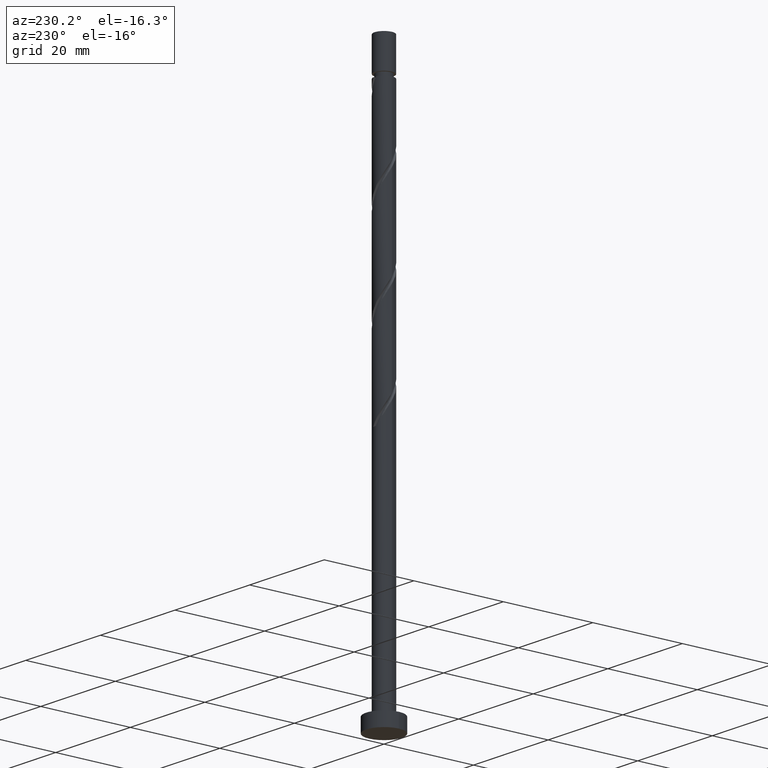
[diagram: clean part render]
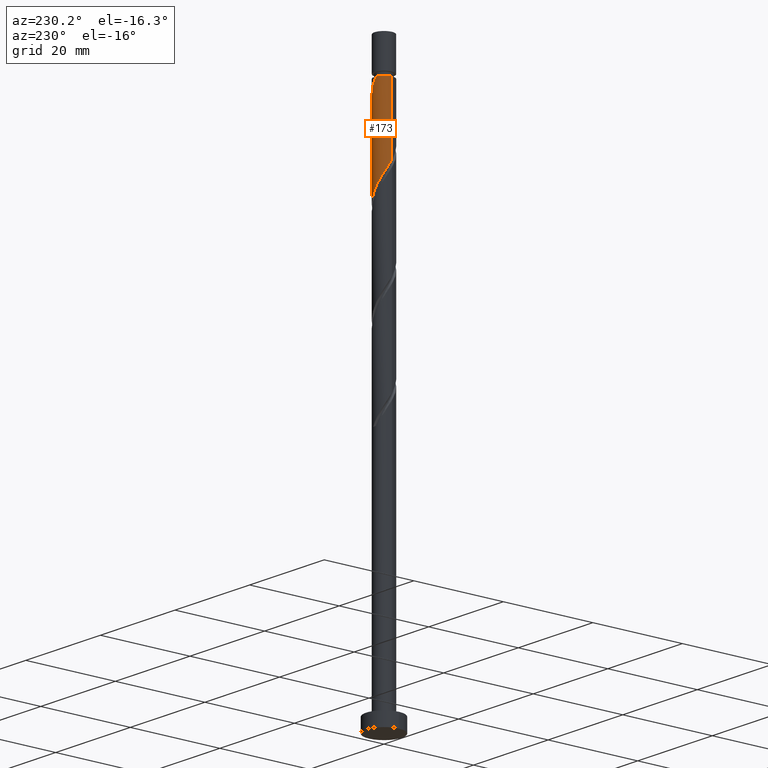
[diagram: same view with one face highlighted and labeled with its STEP entity id]
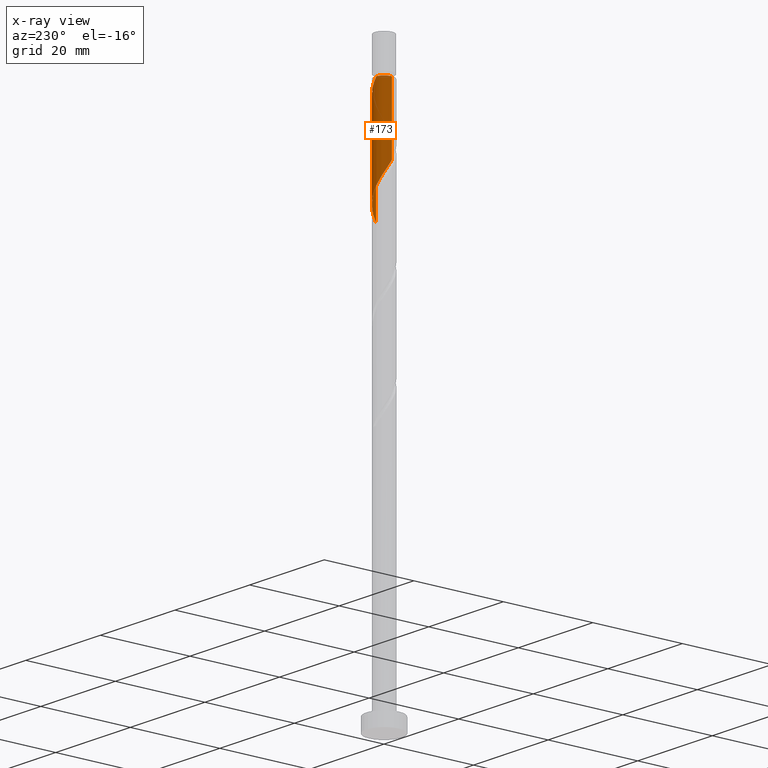
[diagram: x-ray of the same camera — body ghosted, the highlighted face saturated]
A machine part, auxiliary view. The second image highlights one B-rep face of the part: STEP entity #173.
The next image is the same camera in x-ray: the body ghosted, the highlighted face saturated — about 0% of this face is hidden behind the body in this view.
In plain terms, the highlighted cylindrical surface (edge-blend (fillet) strip) has radius 2.1 mm, axis along (-0, -0, -1).
Its self-contained STEP definition (entity closure, byte-faithful):
#11 = CARTESIAN_POINT ( 'NONE',  ( 1.419324618889671097, 1.547745982457619851, 113.9224605060030910 ) ) ;
#21 = CARTESIAN_POINT ( 'NONE',  ( 2.100000000000000089, 0.1196448486375162185, 91.86010737001400628 ) ) ;
#45 = CARTESIAN_POINT ( 'NONE',  ( -2.100000000000000533, 1.424344764404550550E-15, 102.0872629474733628 ) ) ;
#60 = CARTESIAN_POINT ( 'NONE',  ( -1.174185737693569154, 1.772544917859294911, 98.81829383933644806 ) ) ;
#67 = VERTEX_POINT ( 'NONE', #712 ) ;
#69 = FACE_OUTER_BOUND ( 'NONE', #927, .T. ) ;
#131 = CARTESIAN_POINT ( 'NONE',  ( 2.048633742055936846, 0.5689704942628333040, 92.56829383933644806 ) ) ;
#146 = VECTOR ( 'NONE', #1354, 1000.000000000000000 ) ;
#150 = CARTESIAN_POINT ( 'NONE',  ( 1.772544917859294911, 1.174185737693568710, 93.60996050600309104 ) ) ;
#171 = CARTESIAN_POINT ( 'NONE',  ( 1.322947047055943459, 1.664463500085768155, 94.65162717266979087 ) ) ;
#173 = ADVANCED_FACE ( 'NONE', ( #69 ), #898, .T. ) ;
#176 = DIRECTION ( 'NONE',  ( -0.000000000000000000, -0.000000000000000000, -1.000000000000000000 ) ) ;
#180 = CARTESIAN_POINT ( 'NONE',  ( -1.828137739088108171, 1.033398474414309876, 100.3807938393364196 ) ) ;
#198 = VERTEX_POINT ( 'NONE', #1195 ) ;
#205 = DIRECTION ( 'NONE',  ( -0.000000000000000000, -0.000000000000000000, -1.000000000000000000 ) ) ;
#234 = LINE ( 'NONE', #1540, #1139 ) ;
#236 = ORIENTED_EDGE ( 'NONE', *, *, #559, .F. ) ;
#269 = CARTESIAN_POINT ( 'NONE',  ( -0.4178947235847919051, 2.058000000000001162, 117.0474605060031053 ) ) ;
#274 = CARTESIAN_POINT ( 'NONE',  ( 2.100000000000003197, 6.746896252442569669E-16, 111.1743247311995191 ) ) ;
#279 = ORIENTED_EDGE ( 'NONE', *, *, #1047, .T. ) ;
#281 = CARTESIAN_POINT ( 'NONE',  ( -2.100000000000000089, 0.000000000000000000, 125.0000000000000000 ) ) ;
#282 = CARTESIAN_POINT ( 'NONE',  ( 2.100000000000002753, 0.2110579412044383818, 111.5086293066073750 ) ) ;
#312 = CARTESIAN_POINT ( 'NONE',  ( 0.09193954539688486971, 2.124188021909553026, 96.73496050600313367 ) ) ;
#344 = EDGE_CURVE ( 'NONE', #564, #824, #930, .T. ) ;
#362 = CARTESIAN_POINT ( 'NONE',  ( 1.910589329957616211, 0.8715781159782010068, 93.08912717266977666 ) ) ;
#400 = CARTESIAN_POINT ( 'NONE',  ( 0.8715781159782032272, 1.910589329957617766, 114.9641271726697482 ) ) ;
#424 = CIRCLE ( 'NONE', #1017, 2.099999999999998757 ) ;
#431 = CARTESIAN_POINT ( 'NONE',  ( -0.5689704942628336370, 2.048633742055936846, 97.77662717266979087 ) ) ;
#480 = VERTEX_POINT ( 'NONE', #1302 ) ;
#508 = CARTESIAN_POINT ( 'NONE',  ( 2.100000000000003197, 6.746896252442569669E-16, 111.1743247311995191 ) ) ;
#521 = CARTESIAN_POINT ( 'NONE',  ( 0.4178947235847810804, 2.058000000000001162, 96.21412717266976244 ) ) ;
#559 = EDGE_CURVE ( 'NONE', #198, #480, #1096, .T. ) ;
#564 = VERTEX_POINT ( 'NONE', #508 ) ;
#604 = CARTESIAN_POINT ( 'NONE',  ( 1.991811978090451074, 0.7438499017726767359, 112.3599605060031053 ) ) ;
#647 = CARTESIAN_POINT ( 'NONE',  ( -1.664463500085768377, 1.322947047055943015, 99.85996050600309104 ) ) ;
#712 = CARTESIAN_POINT ( 'NONE',  ( -2.099999999999998757, 0.000000000000000000, 117.0474605060031053 ) ) ;
#746 = CARTESIAN_POINT ( 'NONE',  ( 0.5689704942628347473, 2.048633742055939955, 115.4849605060031195 ) ) ;
#751 = EDGE_CURVE ( 'NONE', #67, #198, #1492, .T. ) ;
#764 = DIRECTION ( 'NONE',  ( -1.000000000000000000, 0.000000000000000000, 0.000000000000000000 ) ) ;
#824 = VERTEX_POINT ( 'NONE', #1128 ) ;
#885 = CARTESIAN_POINT ( 'NONE',  ( -2.100000000000000089, 0.2110579412044397973, 101.7529583720655637 ) ) ;
#898 = CYLINDRICAL_SURFACE ( 'NONE', #1269, 2.100000000000000089 ) ;
#927 = EDGE_LOOP ( 'NONE', ( #1549, #1413, #236, #1055, #279 ) ) ;
#930 =( BOUNDED_CURVE ( )  B_SPLINE_CURVE ( 2, ( #274, #282, #1205, #604, #1085, #1110, #11, #1453, #400, #746, #1464, #1334, #269 ),
 .UNSPECIFIED., .F., .T. ) 
 B_SPLINE_CURVE_WITH_KNOTS ( ( 3, 2, 2, 2, 2, 2, 3 ),
 ( 0.6795322023138553602, 0.6875000000000000000, 0.6999999999999999556, 0.7125000000000000222, 0.7249999999999998668, 0.7374999999999999334, 0.7499999999999998890 ),
 .UNSPECIFIED. ) 
 CURVE ( )  GEOMETRIC_REPRESENTATION_ITEM ( )  RATIONAL_B_SPLINE_CURVE ( ( 0.9039174447099405096, 0.9019565955404700297, 0.9090909090909183865, 0.8978984914501343395, 0.9090909090909183865, 0.8978984914501343395, 0.9090909090909183865, 0.8978984914501343395, 0.9090909090909183865, 0.8978984914501343395, 0.9090909090909183865, 0.8978984914501344505, 0.9090909090909182755 ) ) 
 REPRESENTATION_ITEM ( '' )  );
#953 = DIRECTION ( 'NONE',  ( -1.000000000000000000, 0.000000000000000000, 0.000000000000000000 ) ) ;
#997 = CARTESIAN_POINT ( 'NONE',  ( -2.058000000000001162, 0.4178947235847807473, 101.4224605060031195 ) ) ;
#1017 = AXIS2_PLACEMENT_3D ( 'NONE', #1201, #176, #764 ) ;
#1047 = EDGE_CURVE ( 'NONE', #67, #824, #424, .T. ) ;
#1055 = ORIENTED_EDGE ( 'NONE', *, *, #751, .F. ) ;
#1085 = CARTESIAN_POINT ( 'NONE',  ( 1.828137739088110392, 1.033398474414310098, 112.8807938393364196 ) ) ;
#1096 =( BOUNDED_CURVE ( )  B_SPLINE_CURVE ( 2, ( #45, #885, #997, #1520, #180, #647, #1130, #60, #1134, #431, #1109, #312, #521, #1494, #1243, #171, #1098, #150, #362, #131, #1455, #21, #1571 ),
 .UNSPECIFIED., .F., .T. ) 
 B_SPLINE_CURVE_WITH_KNOTS ( ( 3, 2, 2, 2, 2, 2, 2, 2, 2, 2, 2, 3 ),
 ( 0.4295322023138553602, 0.4375000000000000000, 0.4500000000000000111, 0.4625000000000000222, 0.4749999999999999778, 0.4874999999999999889, 0.5000000000000000000, 0.5124999999999999556, 0.5250000000000000222, 0.5374999999999999778, 0.5500000000000000444, 0.5545322023138549161 ),
 .UNSPECIFIED. ) 
 CURVE ( )  GEOMETRIC_REPRESENTATION_ITEM ( )  RATIONAL_B_SPLINE_CURVE ( ( 0.9039174447099354026, 0.9019565955404649227, 0.9090909090909131685, 0.8978984914501292325, 0.9090909090909131685, 0.8978984914501292325, 0.9090909090909131685, 0.8978984914501292325, 0.9090909090909131685, 0.8978984914501292325, 0.9090909090909131685, 0.8978984914501292325, 0.9090909090909131685, 0.8978984914501292325, 0.9090909090909131685, 0.8978984914501292325, 0.9090909090909131685, 0.8978984914501292325, 0.9090909090909131685, 0.8978984914501292325, 0.9090909090909131685, 0.9050328050005778113, 0.9039174447099355136 ) ) 
 REPRESENTATION_ITEM ( '' )  );
#1098 = CARTESIAN_POINT ( 'NONE',  ( 1.547745982457618963, 1.419324618889668210, 94.13079383933643385 ) ) ;
#1109 = CARTESIAN_POINT ( 'NONE',  ( -0.2385154744329744114, 2.086410881982745380, 97.25579383933643385 ) ) ;
#1110 = CARTESIAN_POINT ( 'NONE',  ( 1.664463500085770820, 1.322947047055943903, 113.4016271726697767 ) ) ;
#1128 = CARTESIAN_POINT ( 'NONE',  ( -0.4178947235847919051, 2.058000000000001162, 117.0474605060031053 ) ) ;
#1130 = CARTESIAN_POINT ( 'NONE',  ( -1.419324618889668654, 1.547745982457618963, 99.33912717266973402 ) ) ;
#1134 = CARTESIAN_POINT ( 'NONE',  ( -0.8715781159782016729, 1.910589329957616211, 98.29746050600310525 ) ) ;
#1139 = VECTOR ( 'NONE', #205, 1000.000000000000000 ) ;
#1155 = CARTESIAN_POINT ( 'NONE',  ( 0.000000000000000000, 0.000000000000000000, 125.0000000000000000 ) ) ;
#1195 = CARTESIAN_POINT ( 'NONE',  ( -2.100000000000000533, 1.424344764404550550E-15, 102.0872629474733628 ) ) ;
#1201 = CARTESIAN_POINT ( 'NONE',  ( 0.000000000000000000, 0.000000000000000000, 117.0474605060031053 ) ) ;
#1205 = CARTESIAN_POINT ( 'NONE',  ( 2.058000000000002938, 0.4178947235847805253, 111.8391271726697624 ) ) ;
#1243 = CARTESIAN_POINT ( 'NONE',  ( 1.033398474414310098, 1.828137739088108171, 95.17246050600314788 ) ) ;
#1269 = AXIS2_PLACEMENT_3D ( 'NONE', #1155, #1389, #953 ) ;
#1302 = CARTESIAN_POINT ( 'NONE',  ( 2.100000000000000533, 3.088579173340394367E-15, 91.67059628080670564 ) ) ;
#1334 = CARTESIAN_POINT ( 'NONE',  ( -0.09193954539688117822, 2.124188021909555690, 116.5266271726697340 ) ) ;
#1354 = DIRECTION ( 'NONE',  ( -0.000000000000000000, -0.000000000000000000, -1.000000000000000000 ) ) ;
#1389 = DIRECTION ( 'NONE',  ( -0.000000000000000000, -0.000000000000000000, -1.000000000000000000 ) ) ;
#1413 = ORIENTED_EDGE ( 'NONE', *, *, #1428, .T. ) ;
#1428 = EDGE_CURVE ( 'NONE', #564, #480, #234, .T. ) ;
#1453 = CARTESIAN_POINT ( 'NONE',  ( 1.174185737693571596, 1.772544917859296243, 114.4432938393364338 ) ) ;
#1455 = CARTESIAN_POINT ( 'NONE',  ( 2.086410881982745380, 0.2385154744329739673, 92.04746050600309104 ) ) ;
#1464 = CARTESIAN_POINT ( 'NONE',  ( 0.2385154744329754384, 2.086410881982748045, 116.0057938393364196 ) ) ;
#1492 = LINE ( 'NONE', #281, #146 ) ;
#1494 = CARTESIAN_POINT ( 'NONE',  ( 0.7438499017726769580, 1.991811978090447521, 95.69329383933646227 ) ) ;
#1520 = CARTESIAN_POINT ( 'NONE',  ( -1.991811978090448854, 0.7438499017726766249, 100.9016271726697909 ) ) ;
#1540 = CARTESIAN_POINT ( 'NONE',  ( 2.100000000000000089, 2.571758278209441464E-16, 125.0000000000000000 ) ) ;
#1549 = ORIENTED_EDGE ( 'NONE', *, *, #344, .F. ) ;
#1571 = CARTESIAN_POINT ( 'NONE',  ( 2.100000000000000533, 3.088579173340394367E-15, 91.67059628080669142 ) ) ;